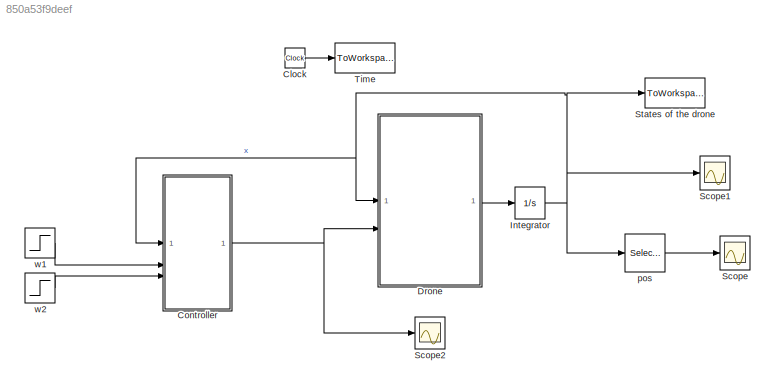
MODEL slx_850a53f9deef
KIND model
CONFIG AbsTol = auto
CONFIG EnableMultiTasking = on
CONFIG FixedStep = auto
CONFIG MaxStep = auto
CONFIG MinStep = auto
CONFIG RelTol = 1e-9
CONFIG SampleTimeConstraint = Unconstrained
CONFIG SolverName = ode45
CONFIG StartTime = 0.0
CONFIG StopFcn = x = X;\nplot3(x(:,8), x(:,10), x(:,11), 'r-', LineWidth=1.5);\ngrid on;
CONFIG StopTime = 100
BLOCK [Clock] Clock
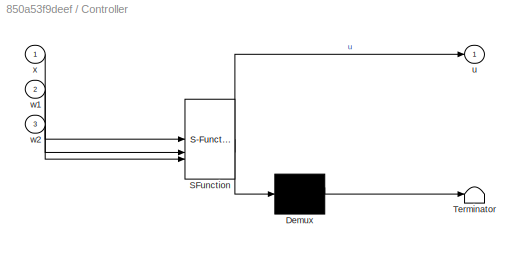
BLOCK [SubSystem] Controller
  ErrorFcn = Stateflow.Translate.translate
  PermitHierarchicalResolution = ExplicitOnly
  SFBlockType = MATLAB Function
  TreatAsAtomicUnit = on
BLOCK [Demux] Controller/ Demux 
  Outputs = 1
BLOCK [S-Function] Controller/ SFunction 
  EnableBusSupport = on
  FunctionName = sf_sfun
  PortCounts = [3 2]
  SFcnIsStateOwnerBlock = off
  SFunctionDeploymentMode = off
  Tag = Stateflow S-Function 1
BLOCK [Terminator] Controller/ Terminator 
BLOCK [Outport] Controller/u
  VectorParamsAs1DForOutWhenUnconnected = off
BLOCK [Inport] Controller/w1
  Port = 2
BLOCK [Inport] Controller/w2
  Port = 3
BLOCK [Inport] Controller/x
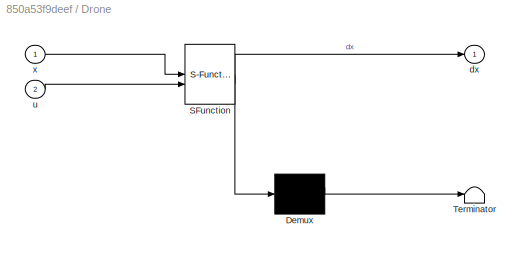
BLOCK [SubSystem] Drone
  ErrorFcn = Stateflow.Translate.translate
  PermitHierarchicalResolution = ExplicitOnly
  SFBlockType = MATLAB Function
  TreatAsAtomicUnit = on
BLOCK [Demux] Drone/ Demux 
  Outputs = 1
BLOCK [S-Function] Drone/ SFunction 
  EnableBusSupport = on
  FunctionName = sf_sfun
  PortCounts = [2 2]
  SFcnIsStateOwnerBlock = off
  SFunctionDeploymentMode = off
  Tag = Stateflow S-Function 2
BLOCK [Terminator] Drone/ Terminator 
BLOCK [Outport] Drone/dx
  VectorParamsAs1DForOutWhenUnconnected = off
BLOCK [Inport] Drone/u
  Port = 2
BLOCK [Inport] Drone/x
BLOCK [Integrator] Integrator
  InitialCondition = [pi/6  0 pi/6 0 0 0 5 0  5 0 0 0]
  UpperSaturationLimit = [0 0 0 0 0 0 pi 0 pi 0 0 0]
BLOCK [Scope] Scope
  Floating = off
  NumInputPorts = 1
  ScopeSpecificationString = Simulink.scopes.TimeScopeBlockCfg('CurrentConfiguration', extmgr.ConfigurationSet(extmgr.Configuration('Core','General UI',true,'FigureColor',[0.941176470588235 0.941176470588235 0.941176470588235],'DisplayFullSourceName',true),extmgr.Configuration('Core','Source UI',true),extmgr.Configuration('Sources','WiredSimulink',true,'DataLoggingSaveFormat','StructureWithTime','DataLoggingDecimation','1','D...<+3570ch>
BLOCK [Scope] Scope1
  Floating = off
  NumInputPorts = 1
  ScopeSpecificationString = Simulink.scopes.TimeScopeBlockCfg('CurrentConfiguration', extmgr.ConfigurationSet(extmgr.Configuration('Core','General UI',true,'FigureColor',[0.941176470588235 0.941176470588235 0.941176470588235],'DisplayFullSourceName',true),extmgr.Configuration('Core','Source UI',true),extmgr.Configuration('Sources','WiredSimulink',true,'DataLoggingSaveFormat','StructureWithTime','DataLoggingDecimation','1','D...<+3729ch>
BLOCK [Scope] Scope2
  Floating = off
  NumInputPorts = 1
  ScopeSpecificationString = Simulink.scopes.TimeScopeBlockCfg('CurrentConfiguration', extmgr.ConfigurationSet(extmgr.Configuration('Core','General UI',true),extmgr.Configuration('Core','Source UI',true),extmgr.Configuration('Sources','WiredSimulink',true,'DataLoggingVariableName','ScopeData1'),extmgr.Configuration('Visuals','Time Domain',true,'SerializedDisplays',{struct('MinYLimReal','-769.97159','MaxYLimReal','764.27899','...<+1840ch>
BLOCK [ToWorkspace] States of the drone
  MaxDataPoints = inf
  SampleTime = -1
  VariableName = X
BLOCK [ToWorkspace] Time
  MaxDataPoints = inf
  SampleTime = -1
  VariableName = T
BLOCK [Selector] pos
  IndexOptions = Index vector (dialog)
  Indices = [5 8 10 11]
  InputPortWidth = 12
  OutputSizes = 1
BLOCK [Step] w1
  SampleTime = 0
  Time = 0
BLOCK [Step] w2
  After = 2
  SampleTime = 0
  Time = 0
LINE Clock:1 -> Time:1
NET Controller:1 -> Drone:2, Scope2:1
LINE Drone:1 -> Integrator:1
NET Integrator:1 -> Controller:1, Drone:1, Scope1:1, States of the drone:1, pos:1
LINE pos:1 -> Scope:1
LINE w1:1 -> Controller:2
LINE w2:1 -> Controller:3
note: NET lines group one-source signal fan-out (src -> all destinations, sorted); 1:1 wires keep LINE
CHART Controller states=1 transitions=1
  STATE_LABEL 'eML_blk_kernel()'
  STATE_LABEL 'SCRIPT:\nfunction u = compute_helical_trim(x, w1, w2)\n\n    u = zeros(5,1);\n    m=0.1; g=-9.81; b=1; d = 1;\n    \n    % control inputs for the model at helix conditions\n    u(5) = 2*(w2 - w1);\n    u(4) = m*g/(cos(x(1))*cos(x(3))) + m*x(12);\n    u(3) = 2*d*(w2^2 - w1^2);\n    u(2) = 0;\n    u(1) = 0;\n   \n    \nend\n'
CHART Drone states=1 transitions=1
  STATE_LABEL 'eML_blk_kernel()'
  STATE_LABEL 'SCRIPT:\nfunction dx = drone(x, u)\n    % Parameters\n    g = -9.81;         \n    m = 0.10;          \n    l = 0.25;         \n    Ixx = 0.001;       \n    Iyy = 0.001;       \n    Izz = 0.002;       \n    Jr = 0.01;        % Rotor inertia\n\n    % Coefficients from the image\n    a1 = (Iyy - Izz) / Ixx;\n    a2 = Jr / Ixx;\n    a3 = (Izz - Ixx) / Iyy;\n    a4 = Jr / Iyy;\n    a5 = (Ixx - Iyy) / Izz;\n\n    b1 = l...<+1095ch>'
CHART  states=0 transitions=0
CHART  states=0 transitions=0
